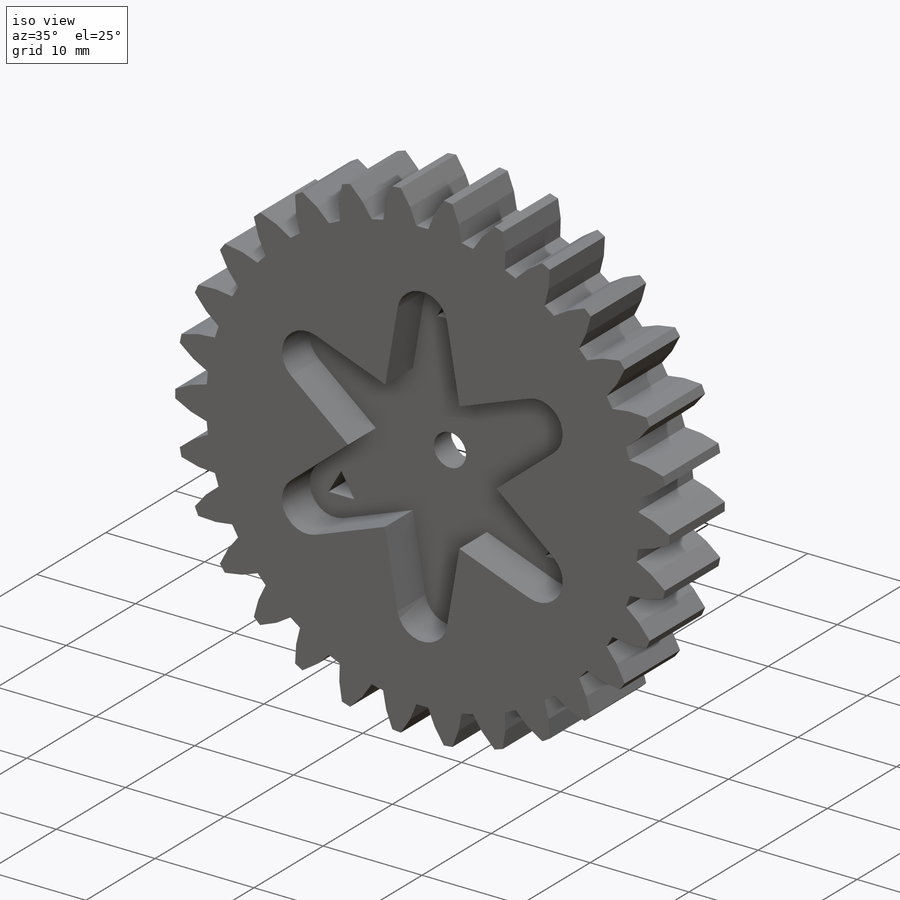
[diagram: iso view]
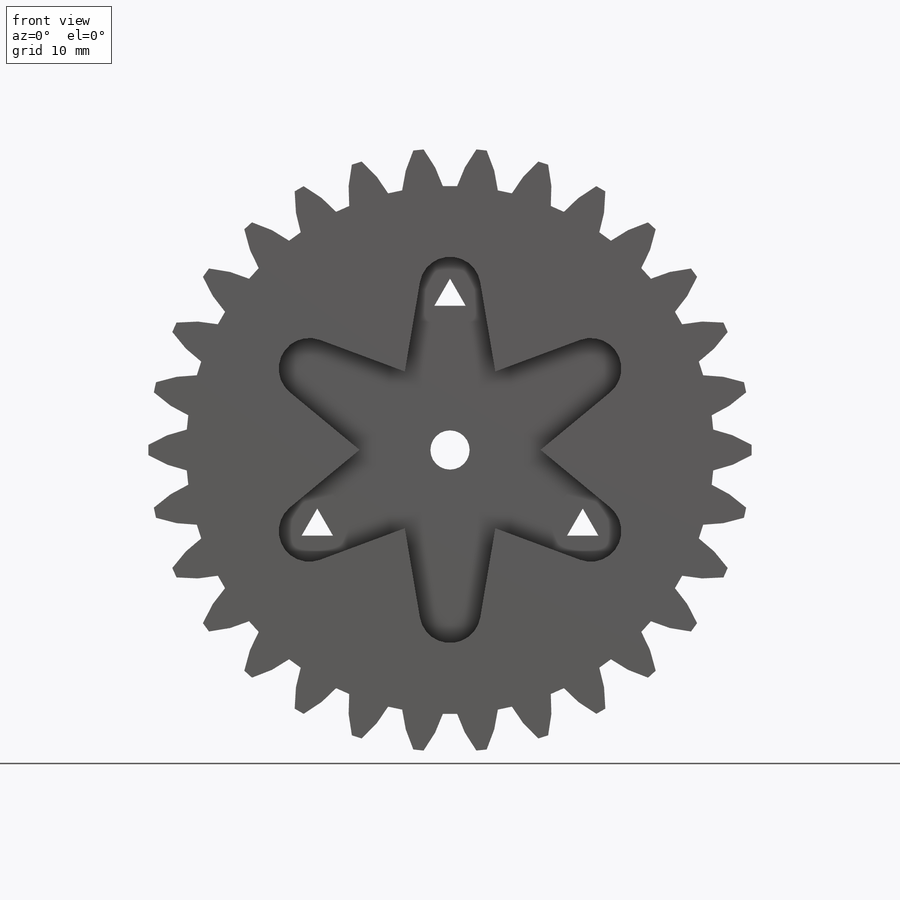
[diagram: front view]
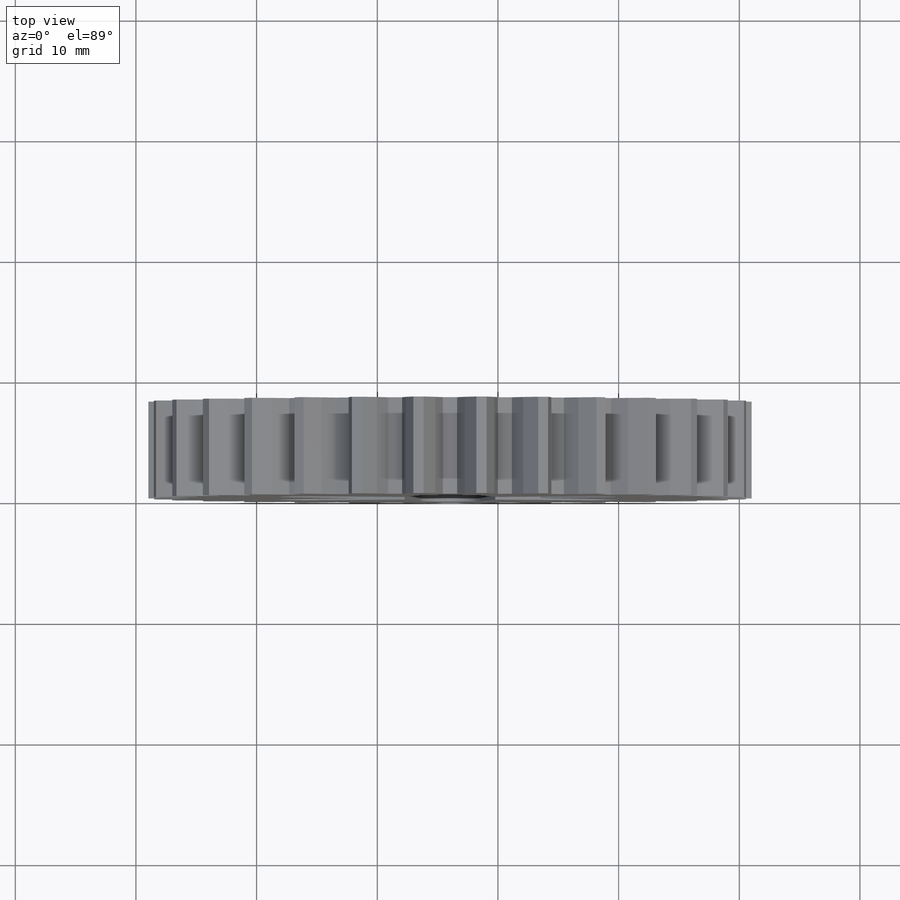
[diagram: top view]
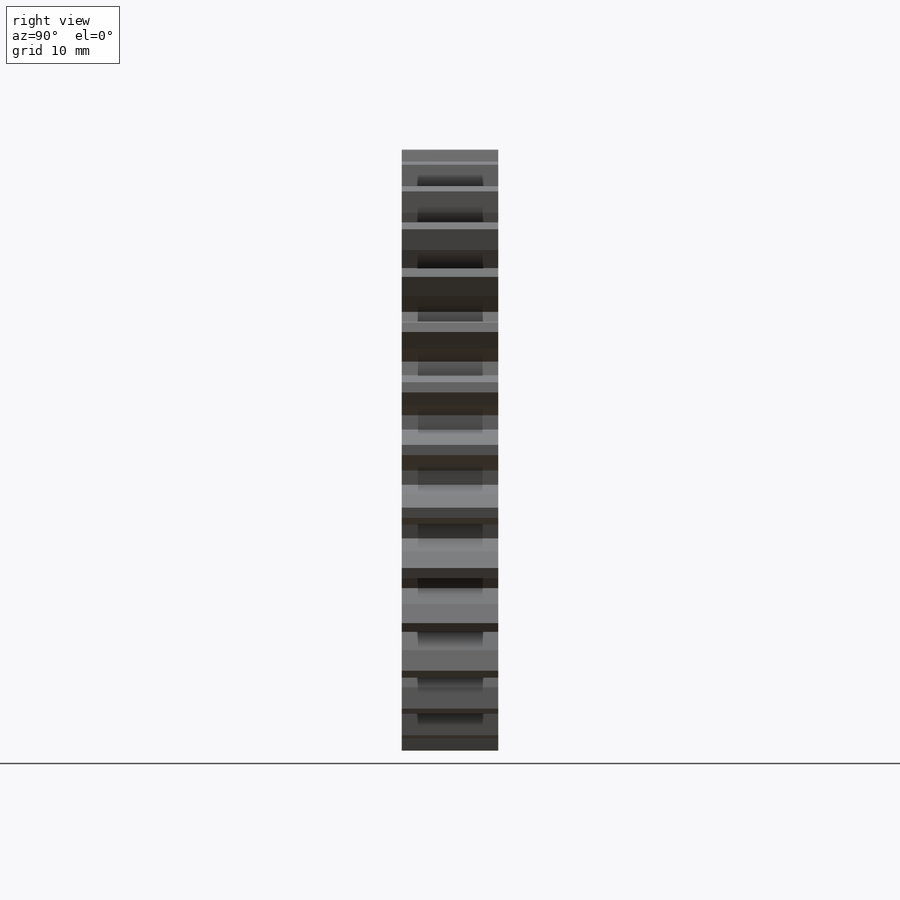
[diagram: right view]
SOLIDWORKS PART (.sldprt)
format: sldprt  version: not decoded by parser v0  size: 405,504 bytes
history: native  units: mm
features: sketch x6, cut_extrude x4, material x1, extrude x1 (+11 scaffold rows collapsed)
feature tree (23):
  scaffold x11  (default folders/planes/origin — collapsed)
  material  "ABS"
  sketch  "Sketch1"
  sketch  "Sketch3"  dims[D1=36.0mm]
  sketch  "Sketch4"  dims[c1.D1=~11.90625mm c2.D1=16.0mm c2.D2=~7.144186mm c3.D2=55.0deg c3.D3=7.5mm c3.D4=5.0mm]
  extrude  "Boss-Extrude1"  Depth=8mm
  sketch  "Sketch5"  dims[D1=3.25mm]
  sketch  "Sketch7"  dims[D1=5.75mm]
  cut_extrude  "Cut-Extrude4"  Depth=4mm
  cut_extrude  "Cut-Extrude5"  [1 undecoded]
  cut_extrude  "Cut-Extrude6"  Depth=1.5mm
  sketch  "Sketch9"  dims[D1=12.7mm D2=12.7mm D3=3.0]
  cut_extrude  "Cut-Extrude7"  [1 undecoded]
decode coverage: 8 of 11 modeling features carry decoded parameters
note: ~ marks probable driven/reference dimensions
note: 2 parameter values undecoded
note: suppression state not decoded; provenance and decode notes live in map.json
